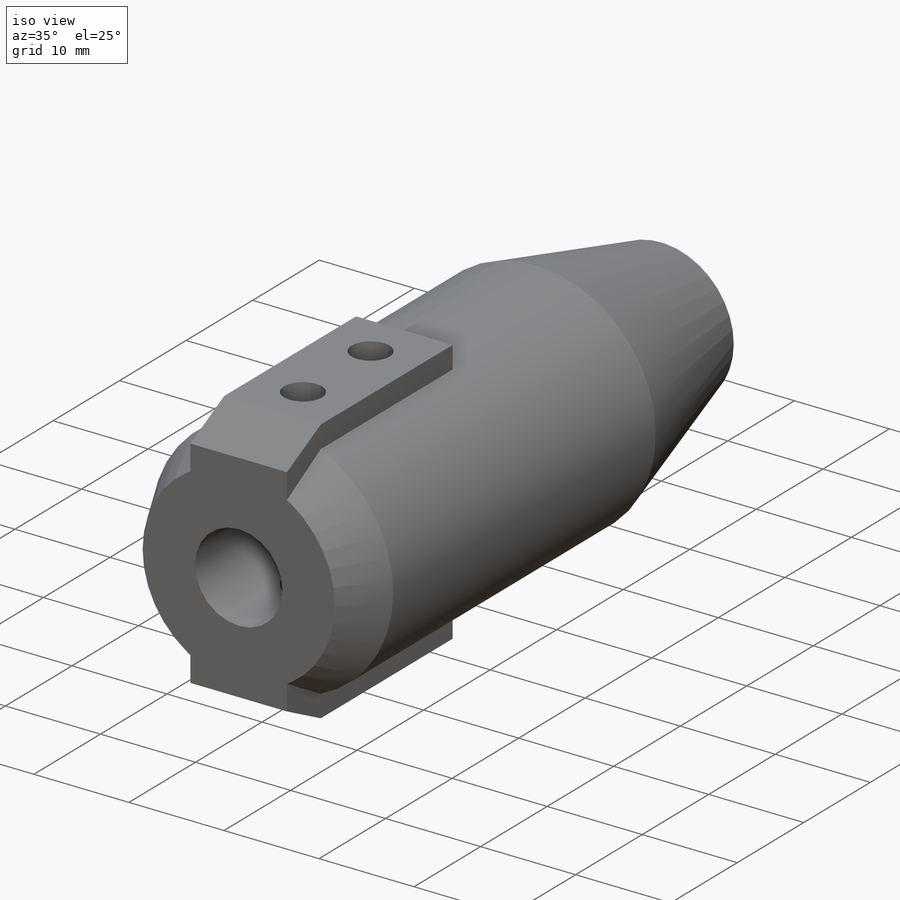
[diagram: iso view]
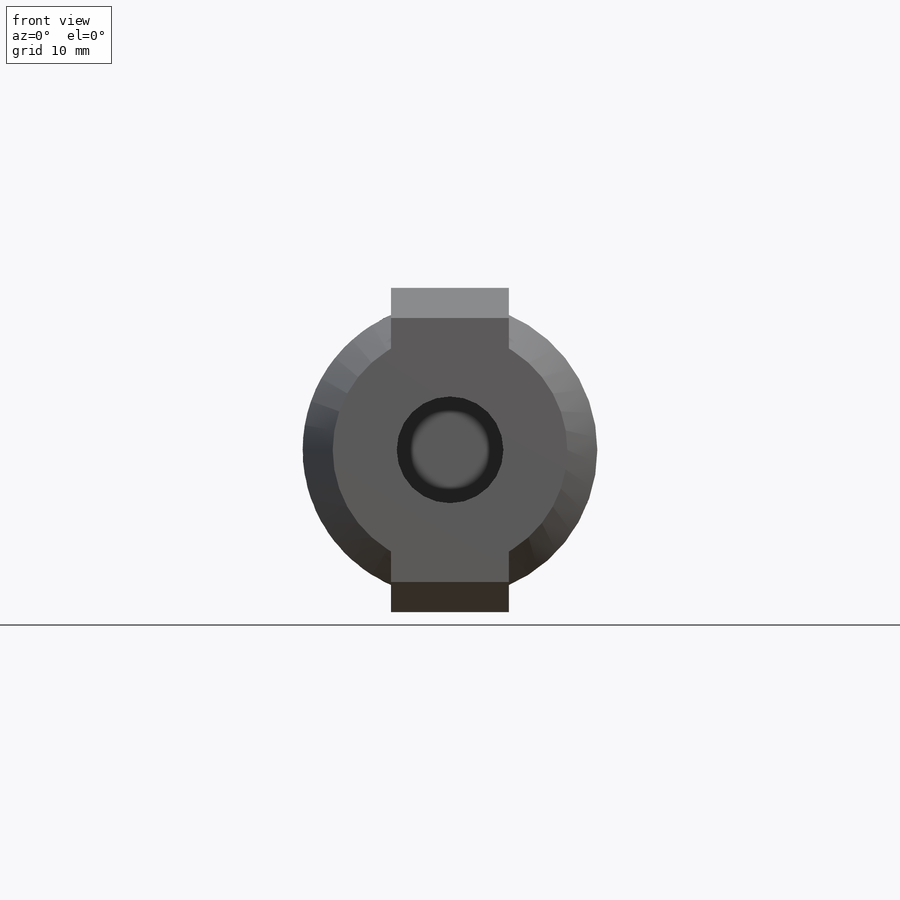
[diagram: front view]
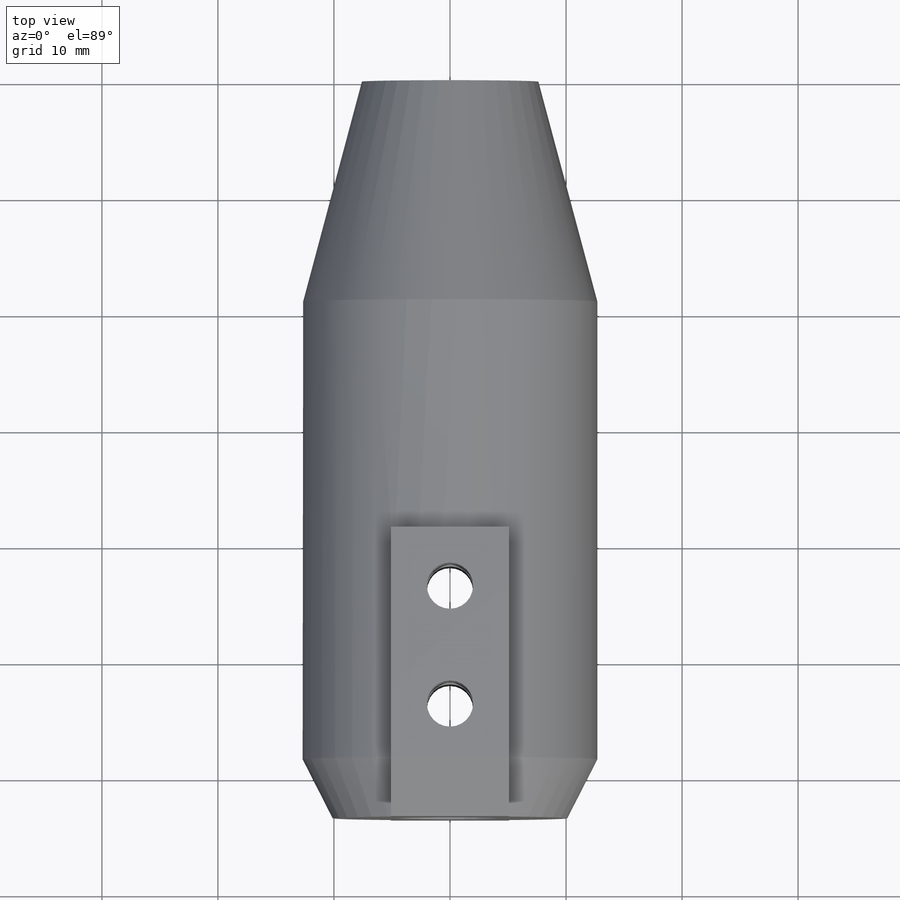
[diagram: top view]
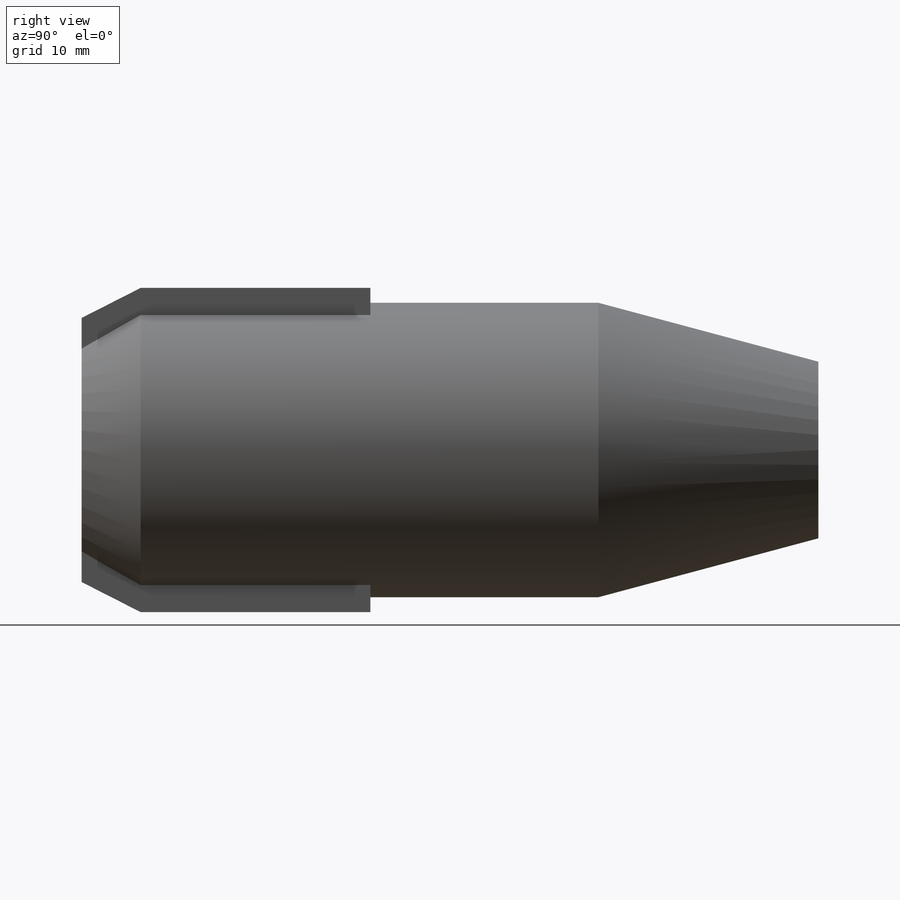
[diagram: right view]
SOLIDWORKS PART (.sldprt)
format: sldprt  version: not decoded by parser v0  size: 227,328 bytes
history: native  units: mm
features: sketch x5, cut_extrude x3, chamfer x3, extrude x2, material x1 (+13 scaffold rows collapsed)
feature tree (27):
  scaffold x13  (default folders/planes/origin — collapsed)
  material  "Material <not specified>"
  sketch  "Sketch1"  dims[D1=25.4mm]
  extrude  "Boss-Extrude1"  Depth=63.5mm
  sketch  "Sketch3"  dims[D1=5.08mm D2=13.97mm]
  extrude  "Boss-Extrude2"  Depth=24.892mm
  sketch  "Sketch2"  dims[D1=9.1948mm]
  cut_extrude  "Cut-Extrude1"  Depth=24.892mm
  sketch  "Sketch4"  dims[D1=3.98mm D2=5.08mm D3=10.16mm]
  cut_extrude  "Cut-Extrude2"  [1 undecoded]
  sketch  "Sketch5"  dims[D1=8.128mm]
  cut_extrude  "Cut-Extrude3"  Depth=25.4mm
  chamfer  "Chamfer1"  Distance=5.08mm Angle=75deg
  chamfer  "Chamfer2"  Distance=5.08mm Angle=27deg
  chamfer  "Chamfer3"  Distance=5.08mm Angle=27deg
decode coverage: 12 of 13 modeling features carry decoded parameters
note: 1 parameter value undecoded
note: suppression state not decoded; provenance and decode notes live in map.json
